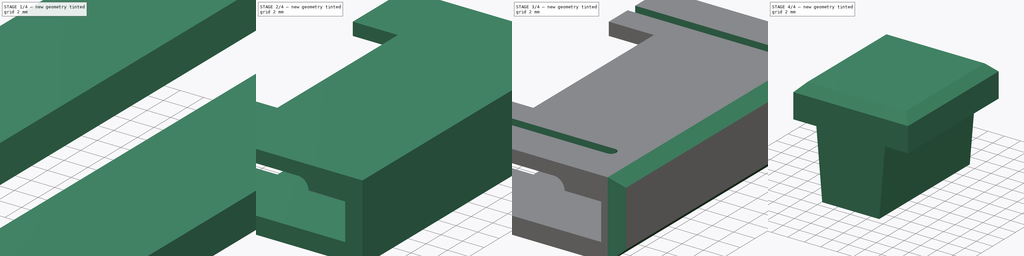
[diagram: build sequence overview — one tinted view per stage of 4, left to right]
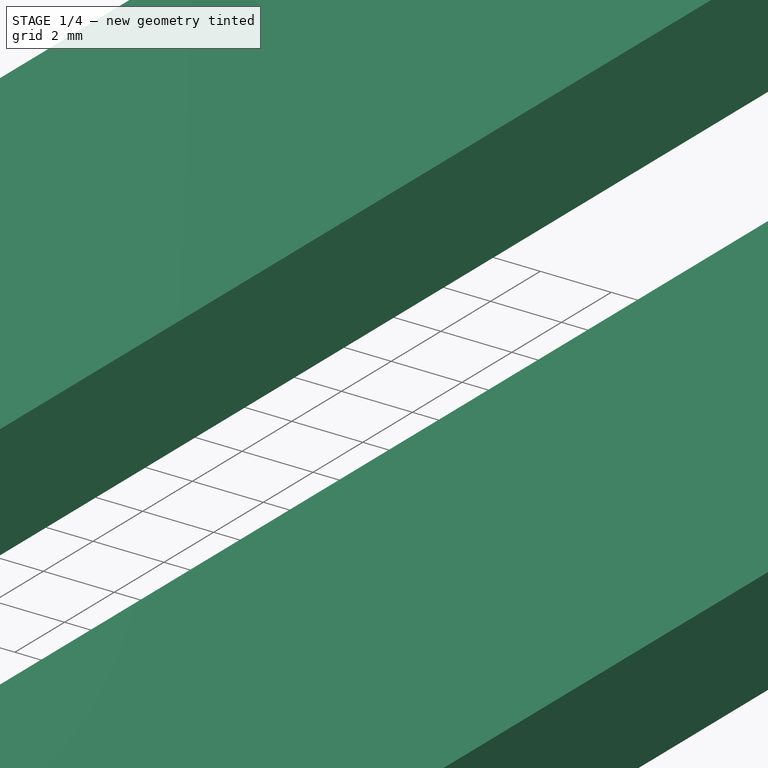
[diagram: stage 1 of 4 — iso view after this stage's code; geometry added in this stage tinted green]
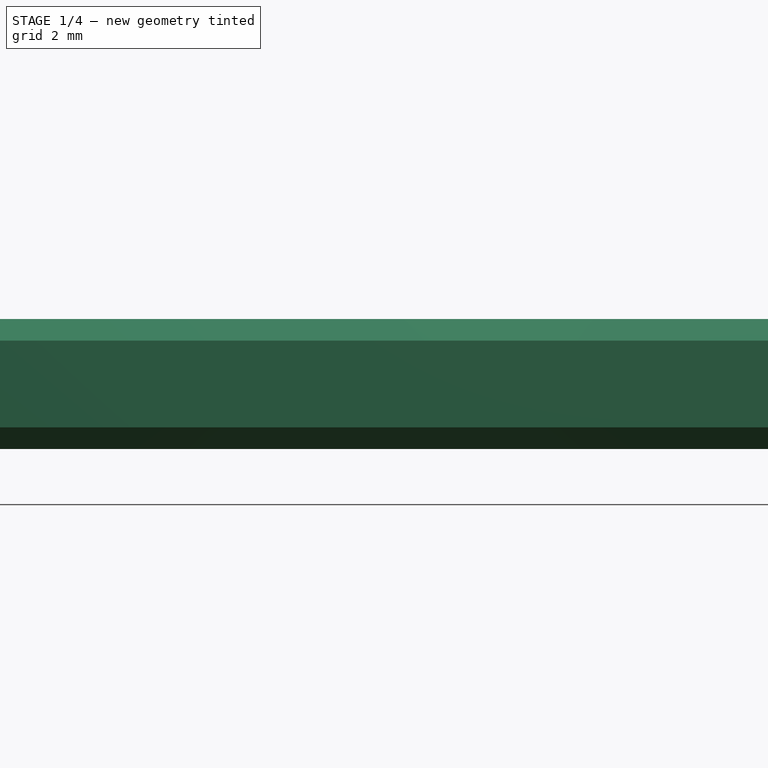
[diagram: stage 1 of 4 — front view after this stage's code; geometry added in this stage tinted green]
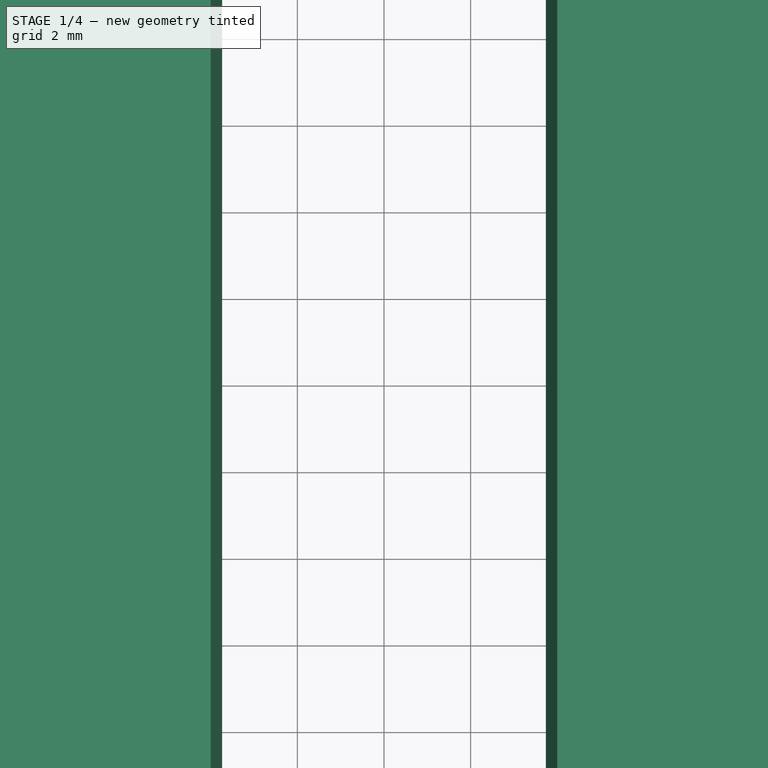
[diagram: stage 1 of 4 — top view after this stage's code; geometry added in this stage tinted green]
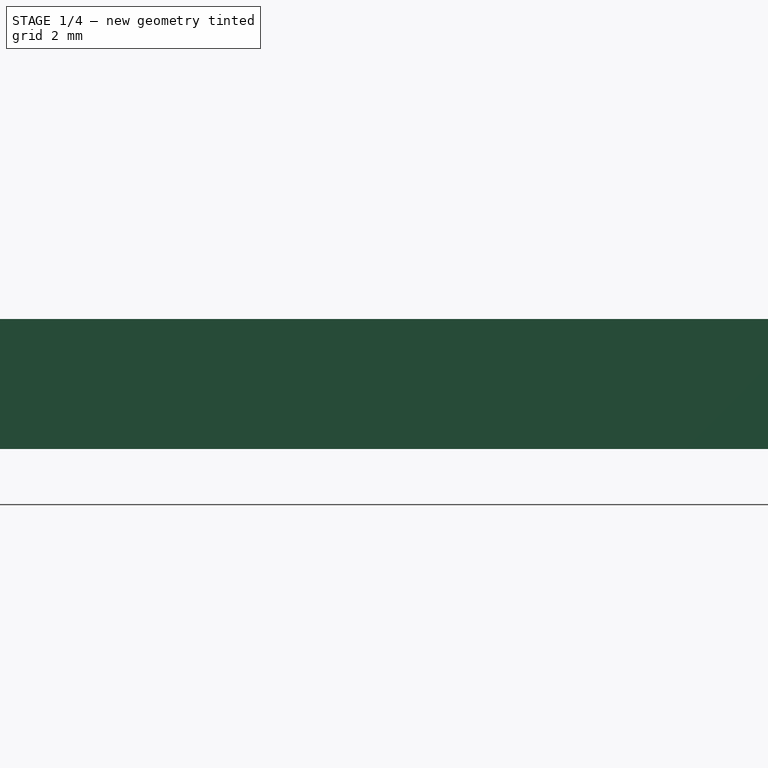
[diagram: stage 1 of 4 — right view after this stage's code; geometry added in this stage tinted green]
FCSTD DOCUMENT  (FreeCAD 1.1R42340 (Git))
Label: Proto coin
License: Creative Commons Attribution-NonCommercial-ShareAlike 4.0
LicenseURL: https://creativecommons.org/licenses/by-nc-sa/4.0/
objects: Sketcher::SketchObject×6, App::Point×3, PartDesign::Pad×3, PartDesign::Pocket×3, PartDesign::Chamfer×3, PartDesign::Body×3, PartDesign::SubShapeBinder×2, PartDesign::Mirrored×2, PartDesign::Draft×1, App::VarSet×1
note: 51 computed .brp shape members not serialized (recipe doc carries the construction recipe); baked Part::Feature solids carry a one-line shape summary decoded from their .brp

FEATURE [App::Point] Origin001
  Role = Origin
FEATURE [Sketcher::SketchObject] Sketch
  ArcFitTolerance = 1e-06
  AttachmentSupport = -> [Origin]
  ExternalTypes = [0]
  FullyConstrained = true
  MakeInternals = false
  MapMode = 5
  sketch-geometry (8):
    g0: ArcOfCircle CenterX=0 CenterY=30 CenterZ=0 NormalX=0 NormalY=0 NormalZ=1 AngleXU=0 Radius=4 StartAngle=-9e-16 EndAngle=3.14159
    g1: ArcOfCircle CenterX=0 CenterY=-30 CenterZ=0 NormalX=0 NormalY=0 NormalZ=1 AngleXU=0 Radius=4 StartAngle=3.14159 EndAngle=6.28319
    g2: LineSegment StartX=4 StartY=30 StartZ=0 EndX=4 EndY=-30 EndZ=0
    g3: LineSegment StartX=-4 StartY=30 StartZ=0 EndX=-4 EndY=-30 EndZ=0
    g4: LineSegment StartX=-15 StartY=40 StartZ=0 EndX=-15 EndY=-40 EndZ=0
    g5: LineSegment StartX=-15 StartY=-40 StartZ=0 EndX=15 EndY=-40 EndZ=0
    g6: LineSegment StartX=15 StartY=-40 StartZ=0 EndX=15 EndY=40 EndZ=0
    g7: LineSegment StartX=15 StartY=40 StartZ=0 EndX=-15 EndY=40 EndZ=0
  constraints (20):
    c: Tangent(g0,g2) = 1.5708
    c: Tangent(g0,g3) = -1.5708
    c: Tangent(g1,g2) = 1.5708
    c: Tangent(g1,g3) = -1.5708
    c: Equal(g0,g1)
    c: Vertical(g3)
    c: Radius(g0) = 4
    c: Symmetric(g1,g0,g-1)
    c: DistanceY(g2,g2) = 60
    c: Coincident(g4,g5)
    c: Coincident(g5,g6)
    c: Coincident(g6,g7)
    c: Coincident(g7,g4)
    c: Vertical(g4)
    c: Vertical(g6)
    c: Horizontal(g5)
    c: Horizontal(g7)
    c: Distance(g4,g6) = 30
    c: Distance(g5,g7) = 80
    c: Symmetric(g4,g6,g-1)
FEATURE [PartDesign::Pad] Pad
  Direction = (0,0,1)
  Length = 3
  Length2 = 10
  Profile = -> Sketch
  ReferenceAxis = -> Sketch [N_Axis]
  Refine = true
  Suppressed = false
  Type = 0
FEATURE [PartDesign::Draft] Draft
  Angle = 5
  Base = -> Pad [Face8,Face6]
  BaseFeature = -> Pad
  NeutralPlane = -> Pad [Face10]
  Refine = true
  SupportTransform = false
  Suppressed = false
FEATURE [PartDesign::Body] Body002  label="Pin"
  AllowCompound = true
  Group = -> [Binder001,Sketch006,Pad002,Chamfer001]
  Origin = -> Origin004
  Tip = -> Chamfer001
FEATURE [PartDesign::Chamfer] Chamfer002
  Angle = 45
  Base = -> Draft [Face2,Face4]
  BaseFeature = -> Draft
  ChamferType = 0
  FlipDirection = false
  Refine = true
  Size = 0.5
  Size2 = 1
  SupportTransform = false
  Suppressed = false
  UseAllEdges = false
FEATURE [PartDesign::Body] Body  label="Ruler"
  AllowCompound = true
  Group = -> [Sketch,Pad,Draft,Chamfer002]
  Origin = -> Origin
  Tip = -> Chamfer002
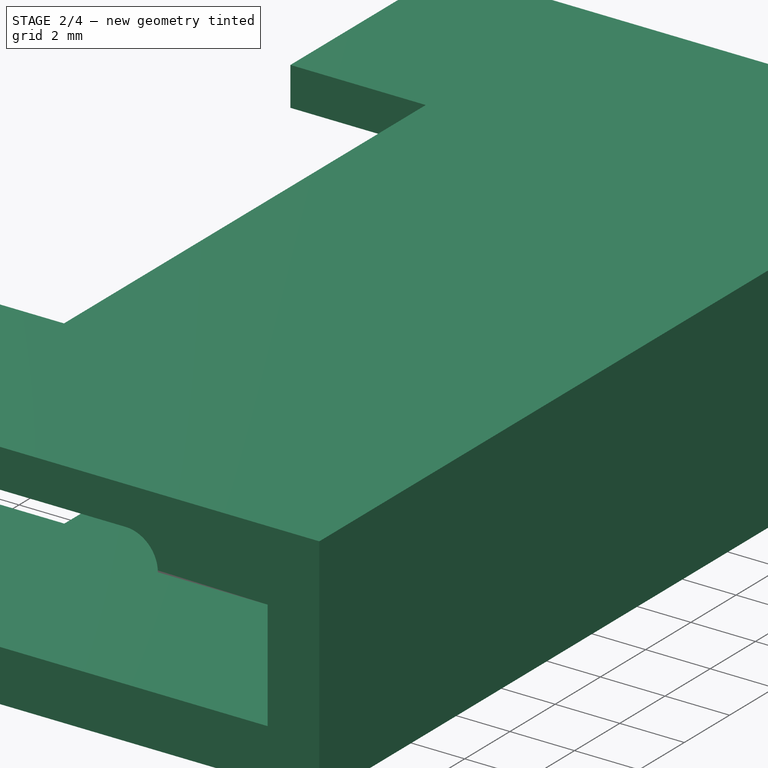
[diagram: stage 2 of 4 — iso view after this stage's code; geometry added in this stage tinted green]
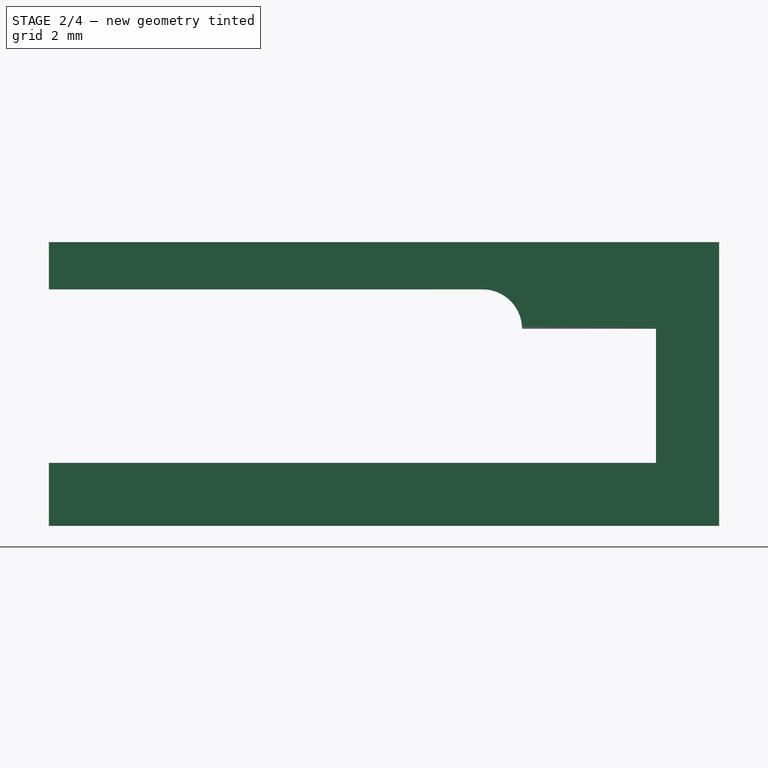
[diagram: stage 2 of 4 — front view after this stage's code; geometry added in this stage tinted green]
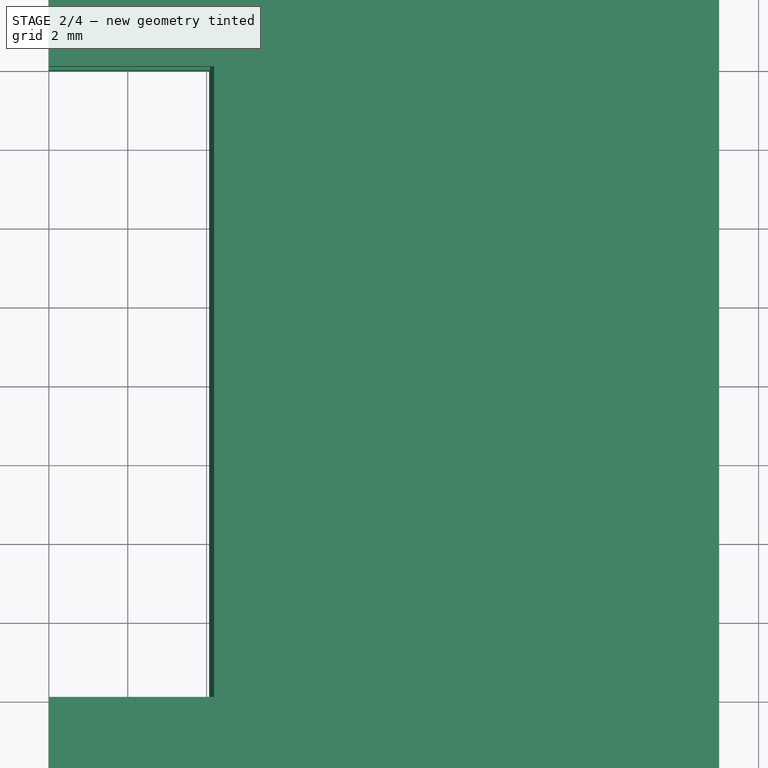
[diagram: stage 2 of 4 — top view after this stage's code; geometry added in this stage tinted green]
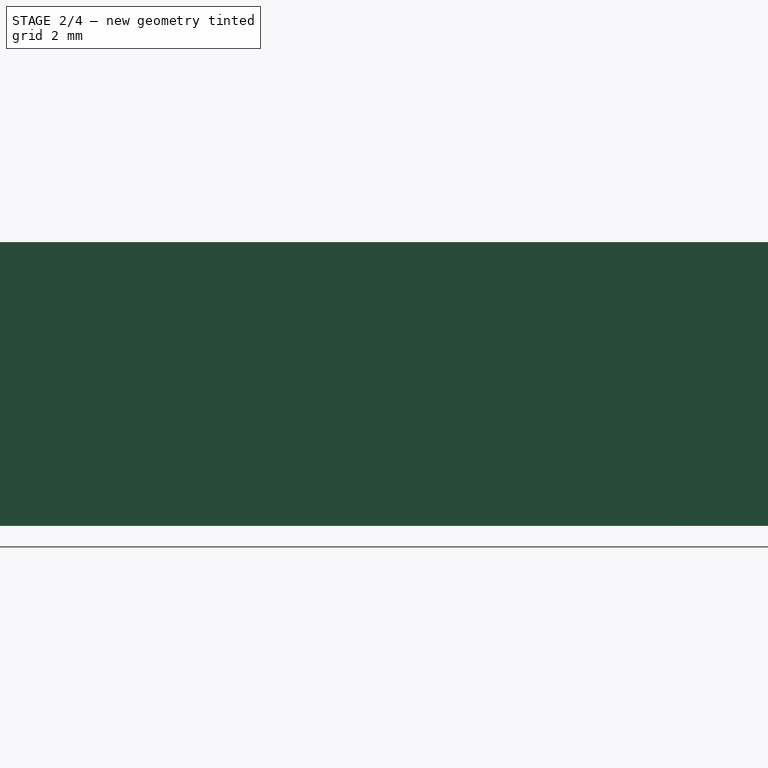
[diagram: stage 2 of 4 — right view after this stage's code; geometry added in this stage tinted green]
FEATURE [App::Point] Origin003
  Role = Origin
FEATURE [Sketcher::SketchObject] Sketch001
  ArcFitTolerance = 1e-06
  AttachmentSupport = -> [Origin002]
  ExternalTypes = [0,0,0,0]
  FullyConstrained = true
  MakeInternals = false
  MapMode = 5
  Placement = pos=(0,0,0) rot=(1,0,0;1.5708rad)
  expr: Constraints[13] = VarSet.Gap
  sketch-geometry (13):
    g0: LineSegment StartX=0 StartY=-2 StartZ=0 EndX=17 EndY=-2 EndZ=0
    g1: LineSegment StartX=0 StartY=4 StartZ=0 EndX=11 EndY=4 EndZ=0
    g2: LineSegment StartX=12 StartY=3 StartZ=0 EndX=15.4 EndY=3 EndZ=0
    g3: LineSegment StartX=15.4 StartY=3 StartZ=0 EndX=15.4 EndY=-0.4 EndZ=0
    g4: LineSegment StartX=15.4 StartY=-0.4 StartZ=0 EndX=0 EndY=-0.4 EndZ=0
    g5: LineSegment StartX=17 StartY=-2 StartZ=0 EndX=17 EndY=5.2 EndZ=0
    g6: LineSegment StartX=17 StartY=5.2 StartZ=0 EndX=0 EndY=5.2 EndZ=0
    g7: LineSegment [constr] StartX=0 StartY=5.2 StartZ=0 EndX=0 EndY=-2 EndZ=0
    g8: ArcOfCircle [constr] CenterX=15 CenterY=8.9e-15 CenterZ=0 NormalX=0 NormalY=0 NormalZ=1 AngleXU=0 Radius=0.4 StartAngle=4.71239 EndAngle=6.28319
    g9: ArcOfCircle [constr] CenterX=15.4 CenterY=-0.4 CenterZ=0 NormalX=0 NormalY=0 NormalZ=1 AngleXU=0 Radius=1.6 StartAngle=4.71239 EndAngle=6.28319
    g10: LineSegment StartX=0 StartY=5.2 StartZ=0 EndX=0 EndY=4 EndZ=0
    g11: LineSegment StartX=0 StartY=-0.4 StartZ=0 EndX=0 EndY=-2 EndZ=0
    g12: ArcOfCircle CenterX=11 CenterY=3 CenterZ=0 NormalX=0 NormalY=0 NormalZ=1 AngleXU=0 Radius=1 StartAngle=0 EndAngle=1.5708
  constraints (36):
    c: Horizontal(g1)
    c: Horizontal(g2)
    c: Coincident(g2,g3)
    c: Vertical(g3)
    c: Coincident(g3,g4)
    c: Horizontal(g4)
    c: Vertical(g5)
    c: Coincident(g5,g6)
    c: Horizontal(g6)
    c: Coincident(g6,g7)
    c: Vertical(g7)
    c: Horizontal(g0)
    c: Coincident(g0,g7)
    c: Distance(g-3,g4) = 0.4
    c: Coincident(g8,g-3)
    c: Tangent(g8,g3) = 1.5708
    c: Tangent(g8,g4) = 1.5708
    c: PointOnObject(g6,g-2)
    c: Distance(g2,g-3) = 3
    c: Coincident(g9,g3)
    c: Tangent(g9,g5) = -1.5708
    c: Distance(g1,g6) = 1.2
    c: PointOnObject(g-3,g2)
    c: Coincident(g6,g10)
    c: PointOnObject(g10,g7)
    c: PointOnObject(g11,g7)
    c: Coincident(g11,g0)
    c: Coincident(g4,g11)
    c: Coincident(g1,g10)
    c: Coincident(g0,g5)
    c: Distance(g11,g11) = 1.6
    c: Tangent(g9,g0) = -1.5708
    c: Tangent(g1,g12) = 1.5708
    c: Coincident(g12,g2)
    c: Horizontal(g12,g2)
    c: Distance(g12,g1) = 1
FEATURE [PartDesign::SubShapeBinder] Binder
  BindCopyOnChange = 0
  BindMode = 0
  ClaimChildren = false
  Context = -> Body001 [Binder.]
  Fuse = false
  MakeFace = true
  OffsetFill = false
  OffsetIntersection = false
  OffsetJoinType = 0
  OffsetOpenResult = false
  PartialLoad = false
  Refine = true
  Relative = true
  Support = -> [Body]
  _Version = 2
FEATURE [App::VarSet] VarSet
  Gap = 0.4
FEATURE [PartDesign::Pad] Pad001
  Direction = (0,-1,2e-16)
  Length = 30
  Length2 = 10
  Midplane = true
  Profile = -> Sketch001
  ReferenceAxis = -> Sketch001 [N_Axis]
  Refine = true
  Suppressed = false
  Type = 0
FEATURE [Sketcher::SketchObject] Sketch002
  ArcFitTolerance = 1e-06
  AttachmentSupport = -> [Origin002]
  ExternalGeometry = -> [Binder,Pad001]
  ExternalTypes = [0,0,0]
  FullyConstrained = true
  MakeInternals = false
  MapMode = 5
  Placement = pos=(0,0,0) rot=(1,0,0;1.5708rad)
  sketch-geometry (9):
    g0: LineSegment StartX=4.08749 StartY=4 StartZ=0 EndX=4.19248 EndY=5.2 EndZ=0
    g1: LineSegment StartX=0 StartY=-2 StartZ=0 EndX=0 EndY=-2 EndZ=0
    g2: LineSegment StartX=4.06447 StartY=-2 StartZ=0 EndX=4.20445 EndY=-0.4 EndZ=0
    g3: LineSegment StartX=4.08749 StartY=4 StartZ=0 EndX=0 EndY=4 EndZ=0
    g4: LineSegment StartX=0 StartY=4 StartZ=0 EndX=0 EndY=5.2 EndZ=0
    g5: LineSegment StartX=0 StartY=5.2 StartZ=0 EndX=4.19248 EndY=5.2 EndZ=0
    g6: LineSegment StartX=4.06447 StartY=-2 StartZ=0 EndX=0 EndY=-2 EndZ=0
    g7: LineSegment StartX=0 StartY=-2 StartZ=0 EndX=0 EndY=-0.4 EndZ=0
    g8: LineSegment StartX=0 StartY=-0.4 StartZ=0 EndX=4.20445 EndY=-0.4 EndZ=0
  constraints (26):
    c: PointOnObject(g0,g-4)
    c: PointOnObject(g0,g-3)
    c: PointOnObject(g0,g-3)
    c: PointOnObject(g1,g-5)
    c: PointOnObject(g2,g-5)
    c: Parallel(g2,g-3)
    c: Distance(g2,g-3) = 0.5
    c: PointOnObject(g1,g-2)
    c: Vertical(g1)
    c: Coincident(g0,g3)
    c: Coincident(g3,g4)
    c: Symmetric(g-4,g-4,g4)
    c: Coincident(g4,g5)
    c: Coincident(g5,g0)
    c: Coincident(g2,g6)
    c: Coincident(g6,g1)
    c: Horizontal(g6)
    c: Coincident(g6,g7)
    c: PointOnObject(g7,g-2)
    c: Coincident(g7,g8)
    c: Coincident(g8,g2)
    c: Horizontal(g8)
    c: PointOnObject(g2,g-6)
    c: PointOnObject(g0,g-7)
    c: Horizontal(g3)
    c: Vertical(g4)
FEATURE [PartDesign::Pocket] Pocket
  BaseFeature = -> Pad001
  Direction = (0,1,-2e-16)
  Length = 16
  Length2 = 5
  Midplane = true
  Profile = -> Sketch002
  ReferenceAxis = -> Sketch002 [N_Axis]
  Refine = true
  Suppressed = false
  Type = 0
FEATURE [Sketcher::SketchObject] Sketch003
  ArcFitTolerance = 1e-06
  AttachmentSupport = -> [Origin002]
  ExternalGeometry = -> [Pocket]
  ExternalTypes = [0,0,0,0]
  FullyConstrained = true
  MakeInternals = false
  MapMode = 5
  Placement = pos=(0,0,0) rot=(1,0,0;1.5708rad)
  sketch-geometry (7):
    g0: LineSegment StartX=12 StartY=3 StartZ=0 EndX=14 EndY=3 EndZ=0
    g1: LineSegment StartX=14 StartY=3 StartZ=0 EndX=14 EndY=3.52444 EndZ=0
    g2: LineSegment [constr] StartX=14 StartY=3.52444 StartZ=0 EndX=12 EndY=3.52444 EndZ=0
    g3: ArcOfCircle CenterX=13.1244 CenterY=3.52444 CenterZ=0 NormalX=0 NormalY=0 NormalZ=1 AngleXU=0 Radius=0.875556 StartAngle=0 EndAngle=1.94301
    g4: ArcOfCircle CenterX=11 CenterY=8.96602 CenterZ=0 NormalX=0 NormalY=0 NormalZ=1 AngleXU=0 Radius=4.96602 StartAngle=4.71239 EndAngle=5.0846
    g5: LineSegment StartX=11 StartY=4 StartZ=0 EndX=11 EndY=3 EndZ=0
    g6: LineSegment StartX=11 StartY=3 StartZ=0 EndX=12 EndY=3 EndZ=0
  constraints (19):
    c: Coincident(g0,g1)
    c: Coincident(g1,g2)
    c: Horizontal(g0)
    c: Horizontal(g2)
    c: Vertical(g1)
    c: Coincident(g0,g-5)
    c: DistanceX(g2,g2) = 2
    c: Horizontal(g-4,g2)
    c: Coincident(g3,g1)
    c: Tangent(g4,g-3) = -1.5708
    c: Tangent(g4,g3) = 1.5708
    c: Horizontal(g2,g3)
    c: Distance(g3,g-6) = 0.8
    c: Coincident(g4,g5)
    c: Coincident(g5,g6)
    c: Coincident(g6,g0)
    c: Horizontal(g6)
    c: Vertical(g5)
    c: Vertical(g2,g0)
FEATURE [PartDesign::Pocket] Pocket001
  BaseFeature = -> Pocket
  Direction = (0,1,-2e-16)
  Length = 22
  Length2 = 5
  Midplane = true
  Profile = -> Sketch003
  ReferenceAxis = -> Sketch003 [N_Axis]
  Refine = true
  Suppressed = false
  Type = 0
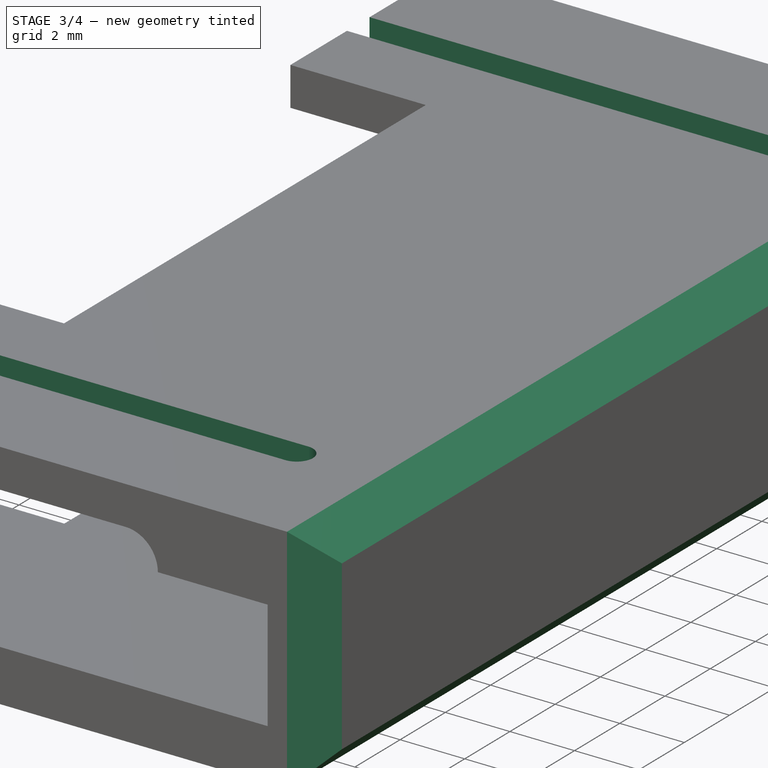
[diagram: stage 3 of 4 — iso view after this stage's code; geometry added in this stage tinted green]
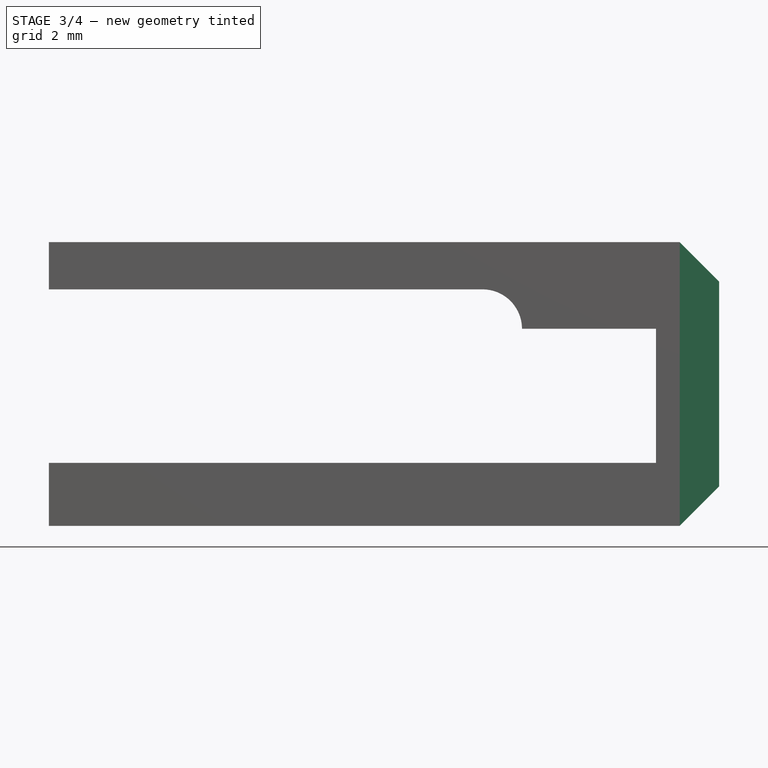
[diagram: stage 3 of 4 — front view after this stage's code; geometry added in this stage tinted green]
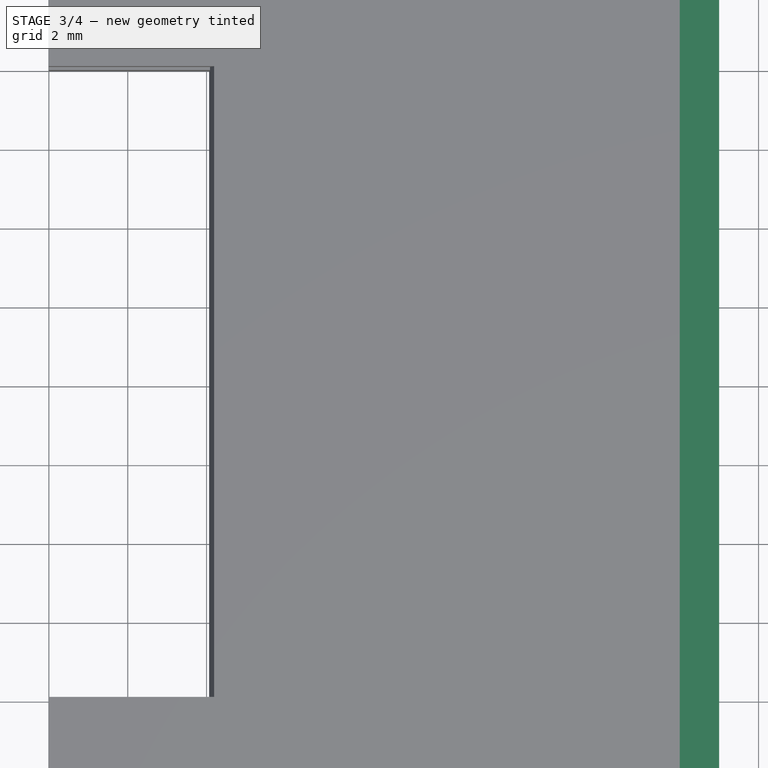
[diagram: stage 3 of 4 — top view after this stage's code; geometry added in this stage tinted green]
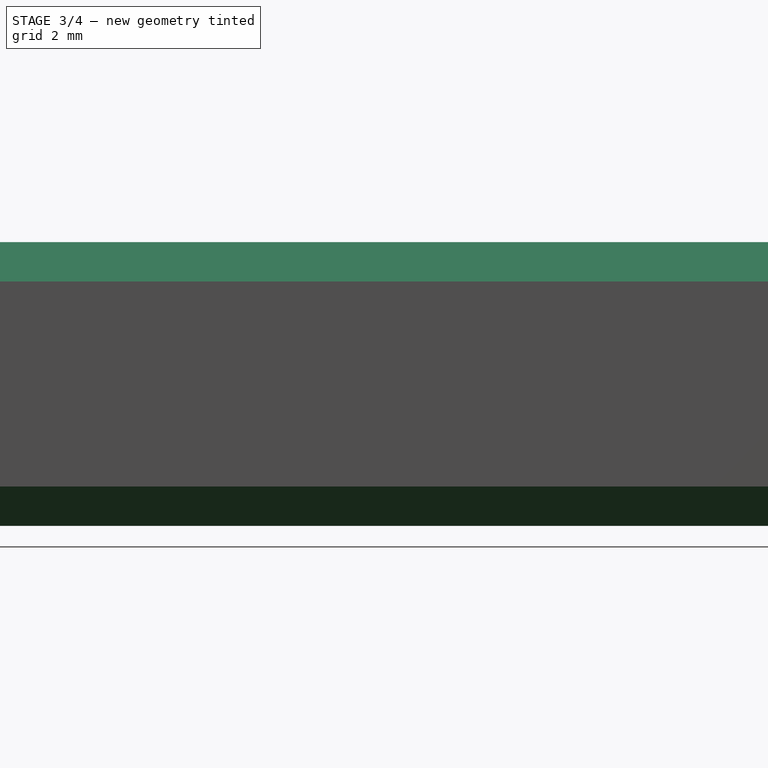
[diagram: stage 3 of 4 — right view after this stage's code; geometry added in this stage tinted green]
FEATURE [Sketcher::SketchObject] Sketch005
  ArcFitTolerance = 1e-06
  AttachmentSupport = -> [Binder]
  ExternalGeometry = -> [Pocket001]
  ExternalTypes = [0,0]
  FullyConstrained = true
  MakeInternals = false
  MapMode = 5
  Placement = pos=(0,0,3) rot=(0,0,1;0rad)
  sketch-geometry (4):
    g0: ArcOfCircle CenterX=0 CenterY=11 CenterZ=0 NormalX=0 NormalY=0 NormalZ=1 AngleXU=0 Radius=0.5 StartAngle=1.5708 EndAngle=4.71239
    g1: ArcOfCircle CenterX=13.5 CenterY=11 CenterZ=0 NormalX=0 NormalY=0 NormalZ=1 AngleXU=0 Radius=0.5 StartAngle=4.71239 EndAngle=7.85398
    g2: LineSegment StartX=-2.75e-13 StartY=11.5 StartZ=0 EndX=13.5 EndY=11.5 EndZ=0
    g3: LineSegment StartX=0 StartY=10.5 StartZ=0 EndX=13.5 EndY=10.5 EndZ=0
  constraints (10):
    c: Tangent(g0,g2) = 1.5708
    c: Tangent(g0,g3) = -1.5708
    c: Tangent(g1,g2) = 1.5708
    c: Tangent(g1,g3) = -1.5708
    c: Equal(g0,g1)
    c: Horizontal(g3)
    c: PointOnObject(g0,g-2)
    c: Radius(g1) = 0.5
    c: PointOnObject(g1,g-3)
    c: Tangent(g-4,g1)
FEATURE [PartDesign::Pocket] Pocket002
  BaseFeature = -> Pocket001
  Direction = (0,0,-1)
  Length = 5
  Length2 = 5
  Profile = -> Sketch005
  ReferenceAxis = -> Sketch005 [N_Axis]
  Refine = true
  Reversed = true
  Suppressed = false
  Type = 0
FEATURE [PartDesign::Mirrored] Mirrored
  BaseFeature = -> Pocket002
  MirrorPlane = -> XZ_Plane001
  Originals = -> [Pocket002]
  Refine = true
  Suppressed = false
  TransformMode = 0
FEATURE [PartDesign::Chamfer] Chamfer
  Angle = 45
  Base = -> Mirrored [Face15]
  BaseFeature = -> Mirrored
  ChamferType = 0
  FlipDirection = false
  Refine = true
  Size = 1
  Size2 = 1
  SupportTransform = false
  Suppressed = false
  UseAllEdges = false
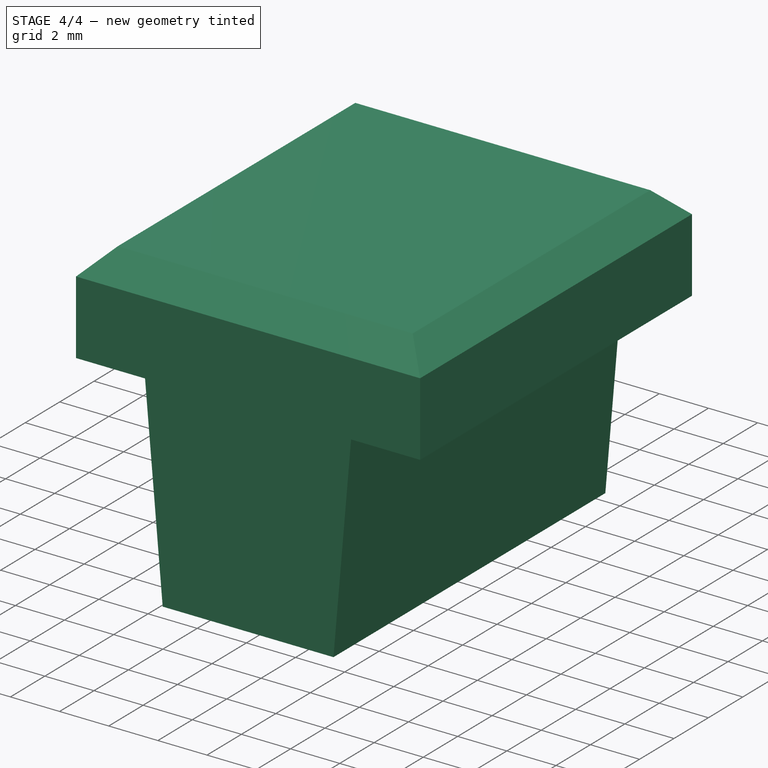
[diagram: stage 4 of 4 — iso view after this stage's code; geometry added in this stage tinted green]
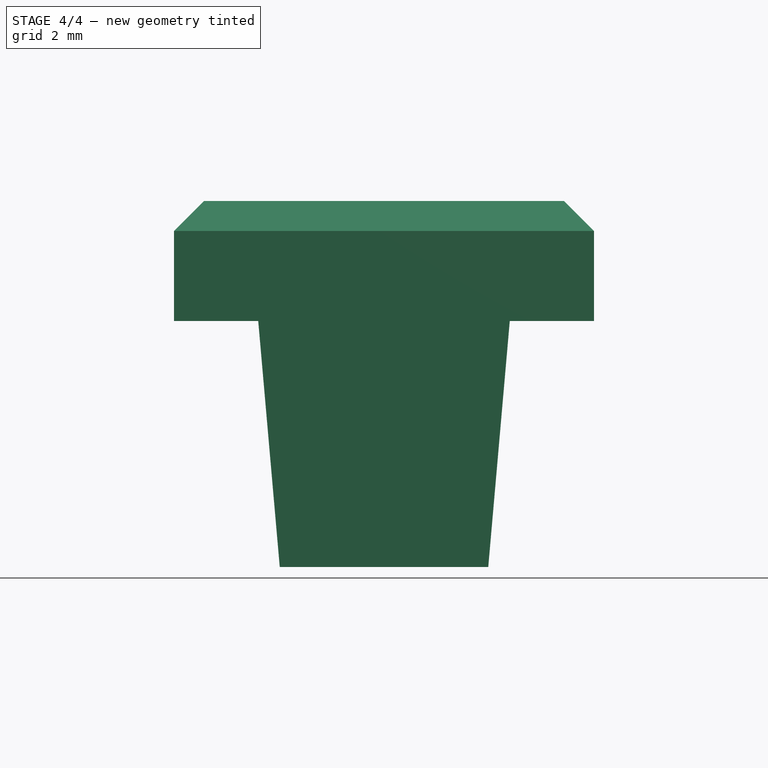
[diagram: stage 4 of 4 — front view after this stage's code; geometry added in this stage tinted green]
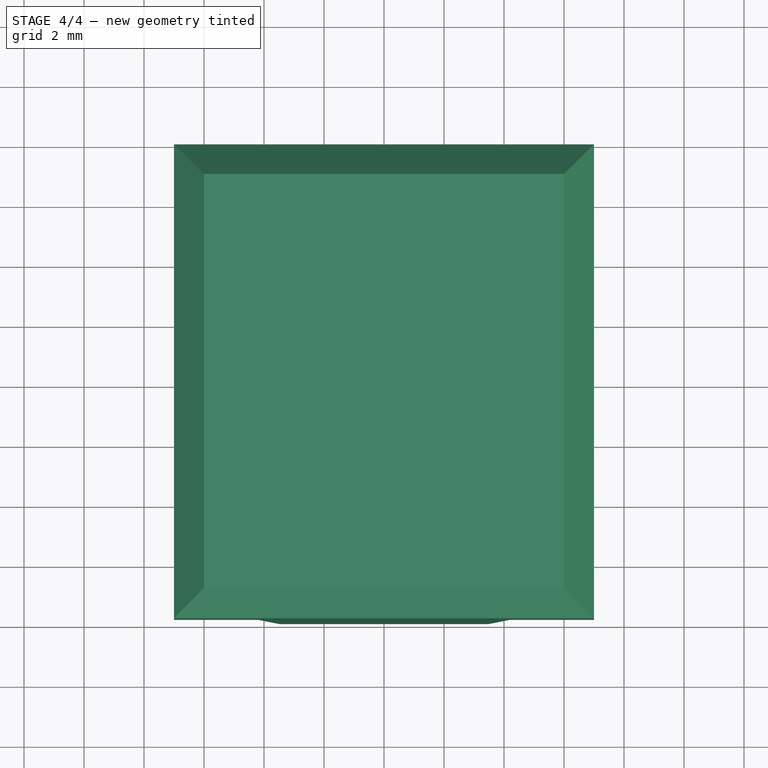
[diagram: stage 4 of 4 — top view after this stage's code; geometry added in this stage tinted green]
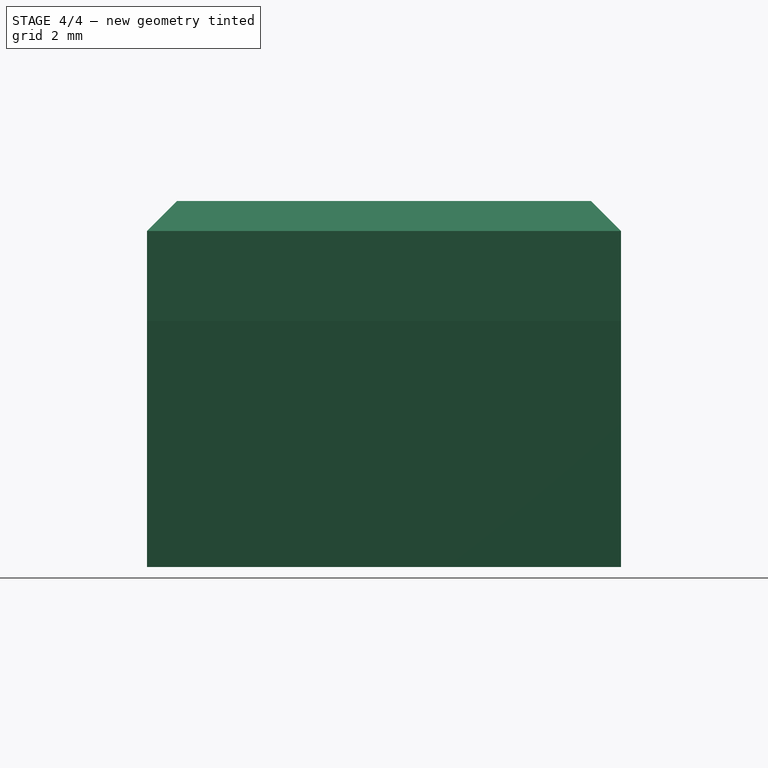
[diagram: stage 4 of 4 — right view after this stage's code; geometry added in this stage tinted green]
FEATURE [PartDesign::Mirrored] Mirrored001
  BaseFeature = -> Chamfer
  MirrorPlane = -> YZ_Plane001
  Originals = -> [Chamfer]
  Refine = true
  Suppressed = false
  TransformMode = 1
FEATURE [PartDesign::Body] Body001  label="Slider"
  AllowCompound = true
  Group = -> [Sketch001,Binder,Pad001,Sketch002,Pocket,Sketch003,Pocket001,Sketch005,Pocket002,Mirrored,Chamfer,Mirrored001]
  Origin = -> Origin002
  Tip = -> Mirrored001
FEATURE [App::Point] Origin005
  Role = Origin
FEATURE [PartDesign::SubShapeBinder] Binder001
  BindCopyOnChange = 0
  BindMode = 0
  ClaimChildren = false
  Context = -> Body002 [Binder001.]
  Fuse = false
  MakeFace = true
  OffsetFill = false
  OffsetIntersection = false
  OffsetJoinType = 0
  OffsetOpenResult = false
  PartialLoad = false
  Refine = true
  Relative = true
  Support = -> [Body001]
  _Version = 2
FEATURE [Sketcher::SketchObject] Sketch006
  ArcFitTolerance = 1e-06
  AttachmentSupport = -> [Origin004]
  ExternalGeometry = -> [Binder001]
  ExternalTypes = [0,0,0,0]
  FullyConstrained = true
  MakeInternals = false
  MapMode = 5
  Placement = pos=(0,0,0) rot=(1,0,0;1.5708rad)
  sketch-geometry (8):
    g0: LineSegment StartX=-4.19248 StartY=5.2 StartZ=0 EndX=-7 EndY=5.2 EndZ=0
    g1: LineSegment StartX=-7 StartY=5.2 StartZ=0 EndX=-7 EndY=9.2 EndZ=0
    g2: LineSegment StartX=-7 StartY=9.2 StartZ=0 EndX=7 EndY=9.2 EndZ=0
    g3: LineSegment StartX=7 StartY=9.2 StartZ=0 EndX=7 EndY=5.2 EndZ=0
    g4: LineSegment StartX=7 StartY=5.2 StartZ=0 EndX=4.19248 EndY=5.2 EndZ=0
    g5: LineSegment StartX=4.19248 StartY=5.2 StartZ=0 EndX=3.47507 EndY=-3 EndZ=0
    g6: LineSegment StartX=3.47507 StartY=-3 StartZ=0 EndX=-3.47507 EndY=-3 EndZ=0
    g7: LineSegment StartX=-3.47507 StartY=-3 StartZ=0 EndX=-4.19248 EndY=5.2 EndZ=0
  constraints (21):
    c: Coincident(g-4,g0)
    c: Horizontal(g0)
    c: Coincident(g0,g1)
    c: Vertical(g1)
    c: Coincident(g1,g2)
    c: Horizontal(g2)
    c: Coincident(g2,g3)
    c: Vertical(g3)
    c: Coincident(g3,g4)
    c: Coincident(g4,g-5)
    c: Coincident(g4,g5)
    c: Coincident(g5,g6)
    c: Horizontal(g6)
    c: Coincident(g6,g7)
    c: Coincident(g7,g0)
    c: PointOnObject(g-4,g7)
    c: Symmetric(g0,g3,g-2)
    c: PointOnObject(g-5,g5)
    c: DistanceY(g5,g-6) = 1
    c: Distance(g1,g1) = 4
    c: DistanceX(g2,g2) = 14
FEATURE [PartDesign::Pad] Pad002
  Direction = (0,-1,2e-16)
  Length = 15.8
  Length2 = 10
  Midplane = true
  Profile = -> Sketch006
  ReferenceAxis = -> Sketch006 [N_Axis]
  Refine = true
  Suppressed = false
  Type = 0
FEATURE [PartDesign::Chamfer] Chamfer001
  Angle = 45
  Base = -> Pad002 [Face3]
  BaseFeature = -> Pad002
  ChamferType = 0
  FlipDirection = false
  Refine = true
  Size = 1
  Size2 = 1
  SupportTransform = false
  Suppressed = false
  UseAllEdges = false
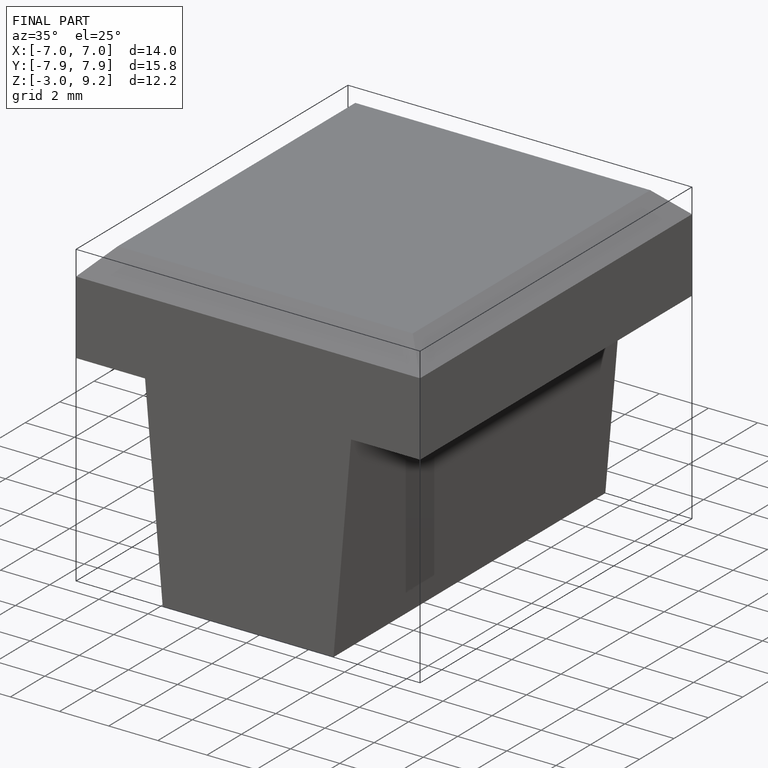
[diagram: finished part — iso view with bounding-box wireframe]
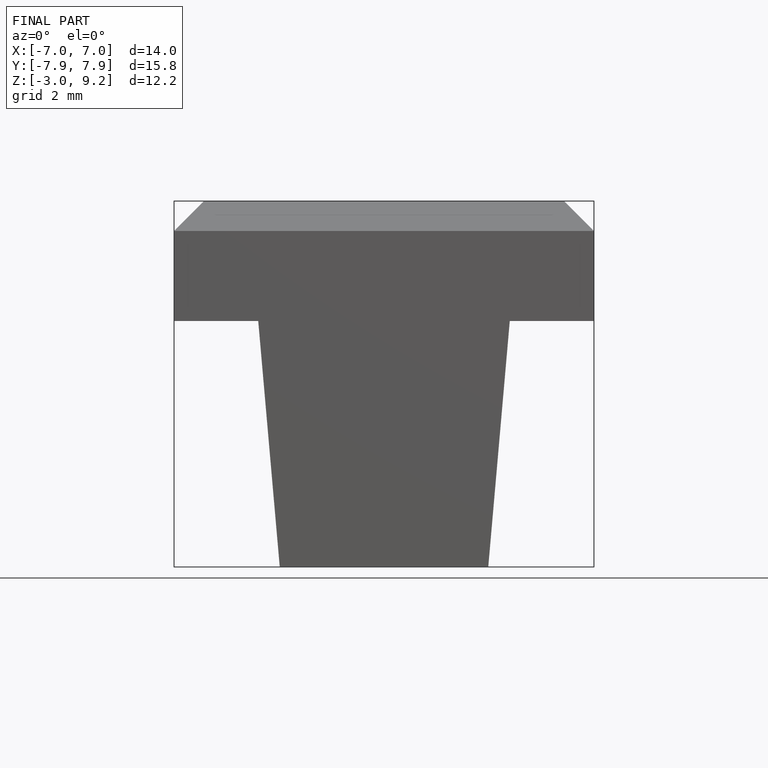
[diagram: finished part — front view with bounding-box wireframe]
